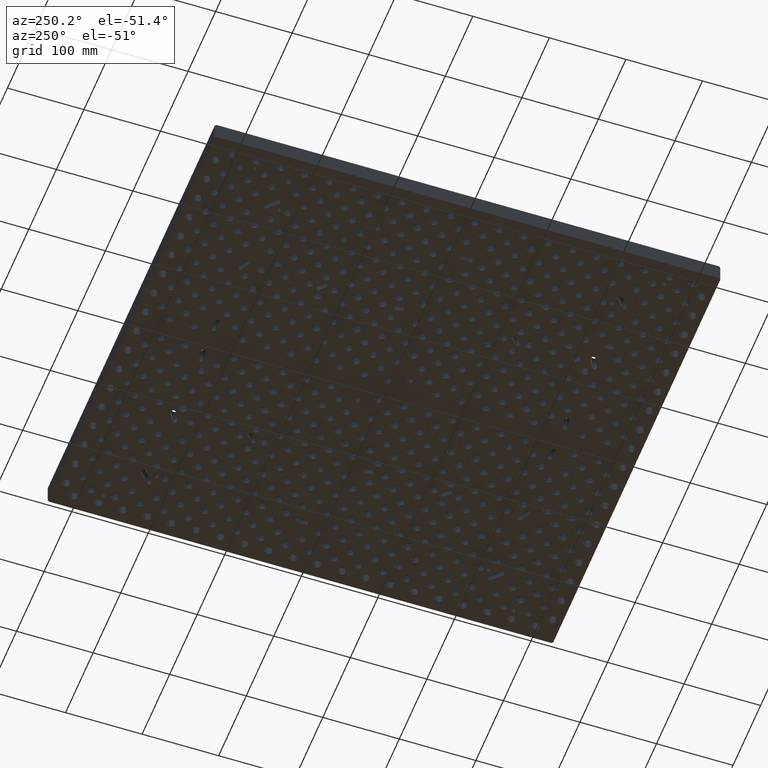
[diagram: clean part render]
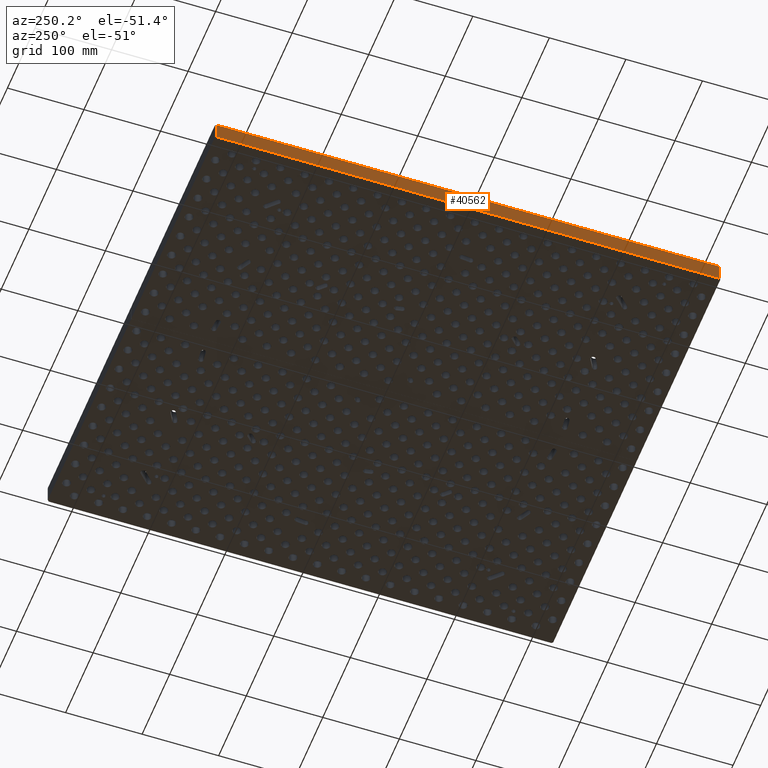
[diagram: same view with one face highlighted and labeled with its STEP entity id]
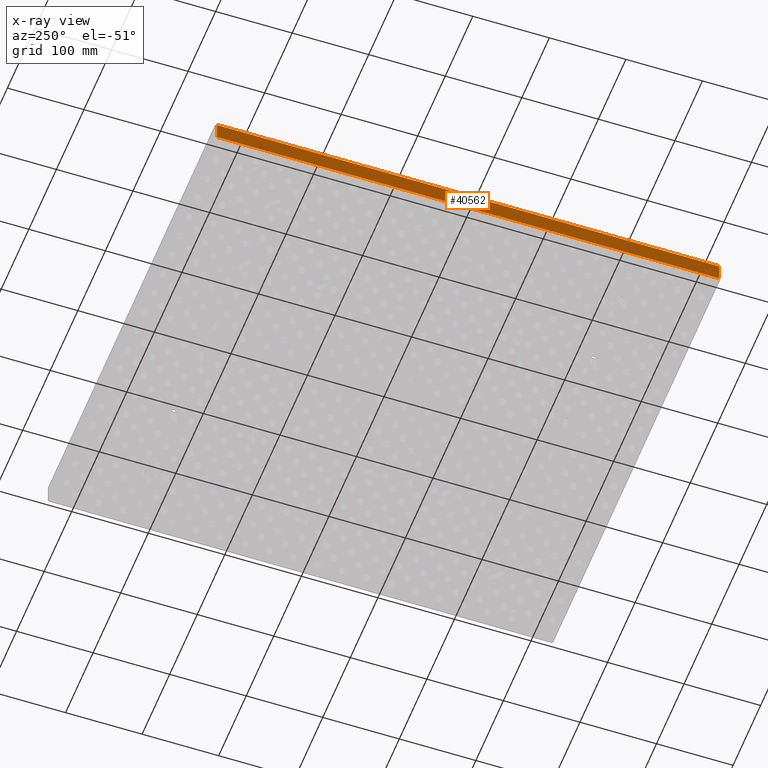
[diagram: x-ray of the same camera — body ghosted, the highlighted face saturated]
A machine part, auxiliary view. The second image highlights one B-rep face of the part: STEP entity #40562.
The next image is the same camera in x-ray: the body ghosted, the highlighted face saturated — about 0% of this face is hidden behind the body in this view.
In plain terms, the highlighted planar face has unit normal (-1, 0, 0).
Its self-contained STEP definition (entity closure, byte-faithful):
#1044=LINE('',#64751,#2769);
#1113=LINE('',#65752,#2838);
#1124=LINE('',#66484,#2849);
#1130=LINE('',#66495,#2855);
#2769=VECTOR('',#48974,0.393700787401575);
#2838=VECTOR('',#50045,0.393700787401575);
#2849=VECTOR('',#50782,0.393700787401575);
#2855=VECTOR('',#50798,0.393700787401575);
#8460=FACE_OUTER_BOUND('',#11828,.T.);
#11828=EDGE_LOOP('',(#30166,#30167,#30168,#30169));
#19220=VERTEX_POINT('',#64749);
#19221=VERTEX_POINT('',#64750);
#19651=VERTEX_POINT('',#65749);
#19652=VERTEX_POINT('',#65751);
#23089=EDGE_CURVE('',#19220,#19221,#1044,.T.);
#23588=EDGE_CURVE('',#19652,#19651,#1113,.T.);
#23955=EDGE_CURVE('',#19652,#19220,#1124,.T.);
#23961=EDGE_CURVE('',#19221,#19651,#1130,.T.);
#30166=ORIENTED_EDGE('',*,*,#23955,.F.);
#30167=ORIENTED_EDGE('',*,*,#23588,.T.);
#30168=ORIENTED_EDGE('',*,*,#23961,.F.);
#30169=ORIENTED_EDGE('',*,*,#23089,.F.);
#39615=PLANE('',#44011);
#40562=ADVANCED_FACE('',(#8460),#39615,.T.);
#44011=AXIS2_PLACEMENT_3D('',#66496,#50799,#50800);
#48974=DIRECTION('',(0.,-1.,0.));
#50045=DIRECTION('',(0.,-1.,0.));
#50782=DIRECTION('',(0.,0.,1.));
#50798=DIRECTION('',(0.,0.,-1.));
#50799=DIRECTION('center_axis',(-1.,0.,0.));
#50800=DIRECTION('ref_axis',(0.,-1.,0.));
#64749=CARTESIAN_POINT('',(-12.,12.9167157287525,0.92));
#64750=CARTESIAN_POINT('',(-12.,-12.9167157287525,0.92));
#64751=CARTESIAN_POINT('',(-12.,13.,0.92));
#65749=CARTESIAN_POINT('',(-12.,-12.9167157287525,0.));
#65751=CARTESIAN_POINT('',(-12.,12.9167157287525,0.));
#65752=CARTESIAN_POINT('',(-12.,13.,0.));
#66484=CARTESIAN_POINT('',(-12.,12.9167157287525,0.));
#66495=CARTESIAN_POINT('',(-12.,-12.9167157287525,0.));
#66496=CARTESIAN_POINT('Origin',(-12.,13.,0.));